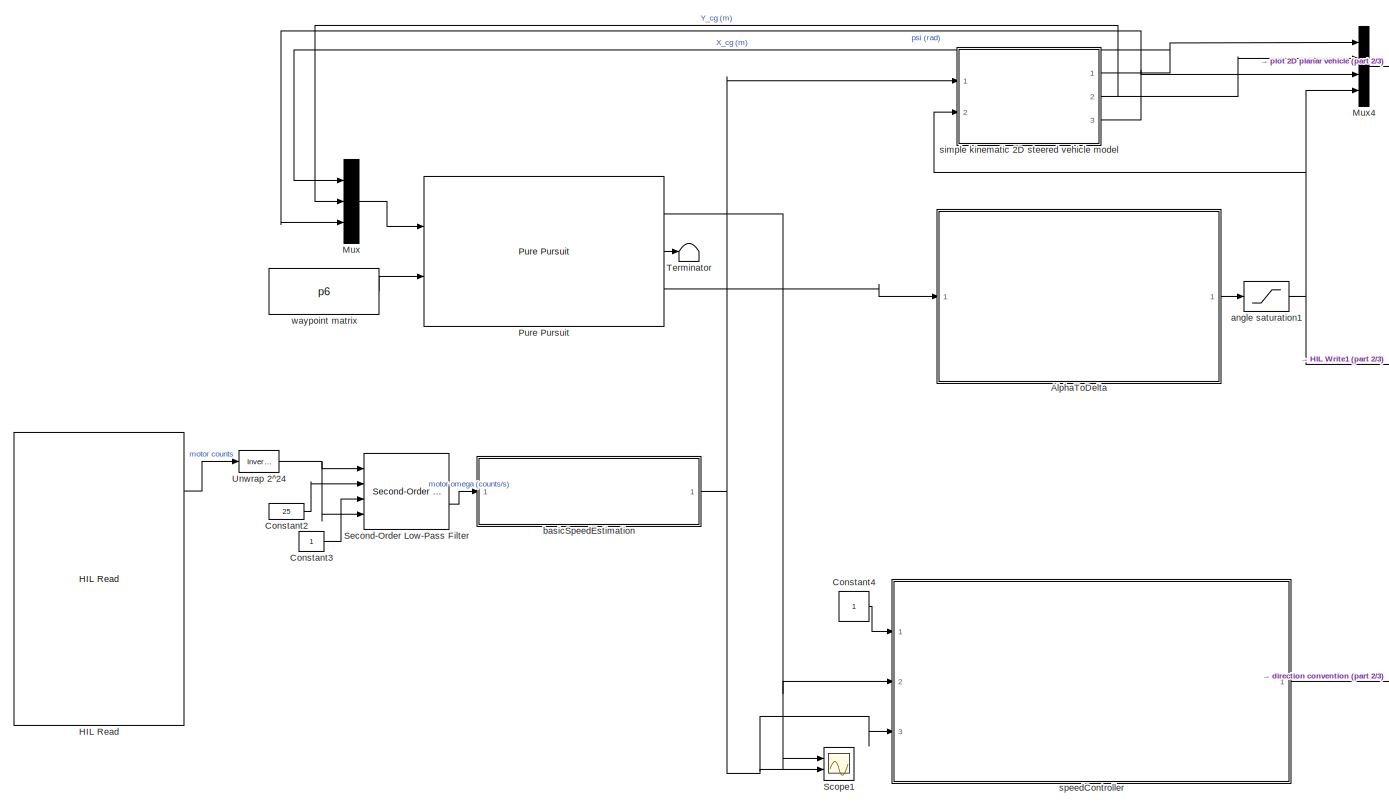
[diagram: root canvas - part 1/3, central region]
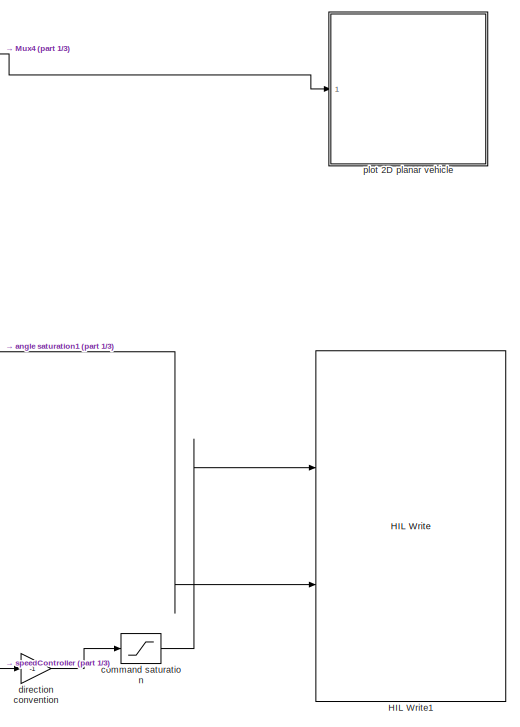
[diagram: root canvas - part 2/3, middle right region]
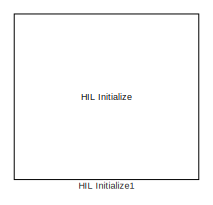
[diagram: root canvas - part 3/3, bottom center region]
MODEL slx_87c99ef4ea6e
KIND model
CONFIG AbsTol = auto
CONFIG EnableMultiTasking = on
CONFIG FixedStep = 1/30
CONFIG MaxStep = auto
CONFIG MinStep = auto
CONFIG RelTol = 1e-3
CONFIG SampleTimeConstraint = Unconstrained
CONFIG SolverName = ode1
CONFIG StartTime = 0.0
CONFIG StopTime = inf
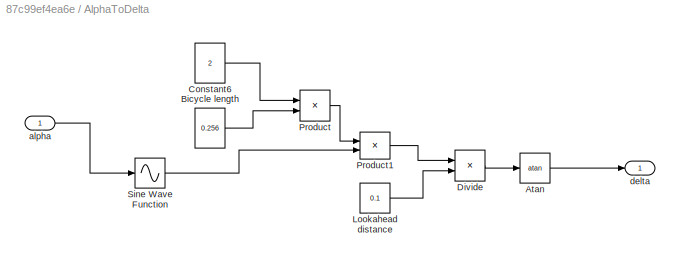
BLOCK [SubSystem] AlphaToDelta
  Ports = [1, 1]
  RequestExecContextInheritance = off
BLOCK [Trigonometry] AlphaToDelta/Atan
  Operator = atan
  Ports = [1, 1]
BLOCK [Constant] AlphaToDelta/Bicycle length
  Value = 0.256
  VectorParams1D = off
BLOCK [Constant] AlphaToDelta/Constant6
  Value = 2
  VectorParams1D = off
BLOCK [Product] AlphaToDelta/Divide
  Inputs = */
  Ports = [2, 1]
BLOCK [Constant] AlphaToDelta/Lookahead distance
  Value = 0.1
  VectorParams1D = off
BLOCK [Product] AlphaToDelta/Product
  Ports = [2, 1]
BLOCK [Product] AlphaToDelta/Product1
  Ports = [2, 1]
BLOCK [Sin] AlphaToDelta/Sine Wave Function
  Ports = [1, 1]
  SampleTime = 0
  TimeSource = Use external signal
BLOCK [Inport] AlphaToDelta/alpha
BLOCK [Outport] AlphaToDelta/delta
BLOCK [Constant] Constant2
  Value = 25
BLOCK [Constant] Constant3
BLOCK [Constant] Constant4
  VectorParams1D = off
BLOCK [Reference] HIL Initialize1  REF=quarc_library/Data Acquisition/Generic/Configuration/HIL Initialize
  AttributesFormatString = %<object_name> (%<board_type>-%<board_number>)
  Ports = []
  SourceBlock = quarc_library/Data Acquisition/Generic/Configuration/HIL Initialize
  SourceProductName = QUARC Targets
  SourceType = HIL Initialize
  UserDataPersistent = on
BLOCK [Reference] HIL Read  REF=quarc_library/Data Acquisition/Generic/Immediate I//O/HIL Read
  AttributesFormatString = (%<object_name>)
  Ports = [0, 4]
  SourceBlock = quarc_library/Data Acquisition/Generic/Immediate I//O/HIL Read
  SourceProductName = QUARC Targets
  SourceType = HIL Read
  UserDataPersistent = on
BLOCK [Reference] HIL Write1  REF=quarc_library/Data Acquisition/Generic/Immediate I//O/HIL Write
  AttributesFormatString = (%<object_name>)
  Ports = [2]
  SourceBlock = quarc_library/Data Acquisition/Generic/Immediate I//O/HIL Write
  SourceProductName = QUARC Targets
  SourceType = HIL Write
  UserDataPersistent = on
BLOCK [Mux] Mux
  DisplayOption = bar
  Inputs = 3
  Ports = [3, 1]
BLOCK [Mux] Mux4
  DisplayOption = bar
  Ports = [4, 1]
BLOCK [Reference] Pure Pursuit  REF=robotalgslib/Pure Pursuit
  Ports = [2, 3]
  SourceBlock = robotalgslib/Pure Pursuit
  SourceProductBaseCode = NV,RO
  SourceType = nav.slalgs.internal.PurePursuit
BLOCK [Scope] Scope1
  Floating = off
  NumInputPorts = 2
  Ports = [2]
  ScopeSpecificationString = Simulink.scopes.TimeScopeBlockCfg('CurrentConfiguration', extmgr.ConfigurationSet(extmgr.Configuration('Core','General UI',true),extmgr.Configuration('Core','Source UI',true),extmgr.Configuration('Sources','WiredSimulink',true,'DataLoggingVariableName','ScopeData1'),extmgr.Configuration('Visuals','Time Domain',true,'SerializedDisplays',{struct('MinYLimReal','0.23968','MaxYLimReal','0.37255','YLabe...<+1411ch>
BLOCK [Reference] Second-Order Low-Pass Filter  REF=quarc_library/Continuous/Second-Order
Low-Pass Filter
  Ports = [4, 2]
  SourceBlock = quarc_library/Continuous/Second-Order\nLow-Pass Filter
  SourceProductName = QUARC Targets
  SourceType = Second-Order Low-Pass Filter
BLOCK [Terminator] Terminator
BLOCK [Reference] Unwrap 2^24  REF=quarc_library/Discontinuities/Inverse
Modulus
  Ports = [1, 1]
  SourceBlock = quarc_library/Discontinuities/Inverse\nModulus
  SourceProductName = QUARC Targets
  SourceType = Inverse Modulus
BLOCK [Saturate] angle saturation1
  NameLocation = top
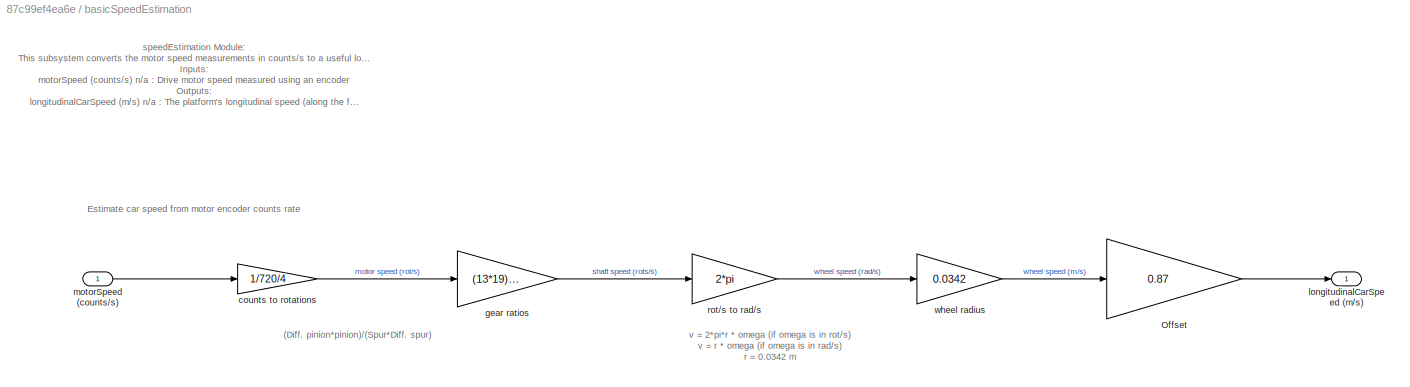
BLOCK [SubSystem] basicSpeedEstimation
  Ports = [1, 1]
  RequestExecContextInheritance = off
BLOCK [Gain] basicSpeedEstimation/Offset
  Gain = 0.87
BLOCK [Gain] basicSpeedEstimation/counts to rotations
  Gain = 1/720/4
BLOCK [Gain] basicSpeedEstimation/gear ratios
  Gain = (13*19)/(70*37)
BLOCK [Outport] basicSpeedEstimation/longitudinalCarSpeed (m//s)
  VectorParamsAs1DForOutWhenUnconnected = off
BLOCK [Inport] basicSpeedEstimation/motorSpeed (counts//s)
BLOCK [Gain] basicSpeedEstimation/rot//s to rad//s
  Gain = 2*pi
BLOCK [Gain] basicSpeedEstimation/wheel radius
  Gain = 0.0342
BLOCK [Saturate] command saturation
  LowerLimit = -0.20
  NameLocation = top
  UpperLimit = 0.20
BLOCK [Gain] direction convention
  Gain = -1
  NameLocation = top
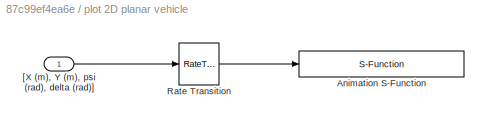
BLOCK [SubSystem] plot 2D planar vehicle
  Ports = [1]
  RequestExecContextInheritance = off
BLOCK [S-Function] plot 2D planar vehicle/Animation S-Function
  EnableBusSupport = off
  FunctionName = sanim_XY_vehicle_viz
  Parameters = Config
  Ports = [1]
  SFcnIsStateOwnerBlock = off
  SFunctionDeploymentMode = off
BLOCK [RateTransition] plot 2D planar vehicle/Rate Transition
  Integrity = off
BLOCK [Inport] plot 2D planar vehicle/[X (m), Y (m), psi (rad), delta (rad)]
BLOCK [SubSystem] simple kinematic 2D steered vehicle model
  Ports = [2, 3]
  RequestExecContextInheritance = off
BLOCK [Gain] simple kinematic 2D steered vehicle model/1//L
  Gain = 1/vehicle_length
BLOCK [Display] simple kinematic 2D steered vehicle model/Display
  Decimation = 1
  NameLocation = top
  Ports = [1]
BLOCK [Gain] simple kinematic 2D steered vehicle model/Gain
  Gain = vehicle_length/2
BLOCK [Ground] simple kinematic 2D steered vehicle model/Ground
BLOCK [Integrator] simple kinematic 2D steered vehicle model/Integrator
  InitialCondition = X_ic
  Ports = [1, 1]
BLOCK [Integrator] simple kinematic 2D steered vehicle model/Integrator1
  InitialCondition = Y_ic
  Ports = [1, 1]
BLOCK [Integrator] simple kinematic 2D steered vehicle model/Integrator2
  InitialCondition = yaw_ic
  Ports = [1, 1]
BLOCK [Product] simple kinematic 2D steered vehicle model/Product
  Ports = [2, 1]
  RndMeth = Zero
BLOCK [Product] simple kinematic 2D steered vehicle model/Product1
  Ports = [2, 1]
  RndMeth = Zero
BLOCK [Product] simple kinematic 2D steered vehicle model/Product2
  Ports = [2, 1]
  RndMeth = Zero
BLOCK [Product] simple kinematic 2D steered vehicle model/Product3
  Ports = [2, 1]
  RndMeth = Zero
BLOCK [Product] simple kinematic 2D steered vehicle model/Product4
  Ports = [2, 1]
  RndMeth = Zero
BLOCK [Sum] simple kinematic 2D steered vehicle model/Sum
  Inputs = |+-
  Ports = [2, 1]
BLOCK [Sum] simple kinematic 2D steered vehicle model/Sum1
  Inputs = |++
  Ports = [2, 1]
BLOCK [Terminator] simple kinematic 2D steered vehicle model/Terminator
BLOCK [Trigonometry] simple kinematic 2D steered vehicle model/Trigonometric Function
  Operator = cos
  Ports = [1, 1]
BLOCK [Trigonometry] simple kinematic 2D steered vehicle model/Trigonometric Function1
  Ports = [1, 1]
BLOCK [Trigonometry] simple kinematic 2D steered vehicle model/Trigonometric Function3
  Operator = tan
  Ports = [1, 1]
BLOCK [Outport] simple kinematic 2D steered vehicle model/X_cg (m)
  VectorParamsAs1DForOutWhenUnconnected = off
BLOCK [Outport] simple kinematic 2D steered vehicle model/Y_cg (m)
  Port = 2
  VectorParamsAs1DForOutWhenUnconnected = off
BLOCK [Inport] simple kinematic 2D steered vehicle model/delta_steer (rad)
  Port = 2
BLOCK [Outport] simple kinematic 2D steered vehicle model/psi (rad)
  Port = 3
  VectorParamsAs1DForOutWhenUnconnected = off
BLOCK [Inport] simple kinematic 2D steered vehicle model/v_x (m//s)
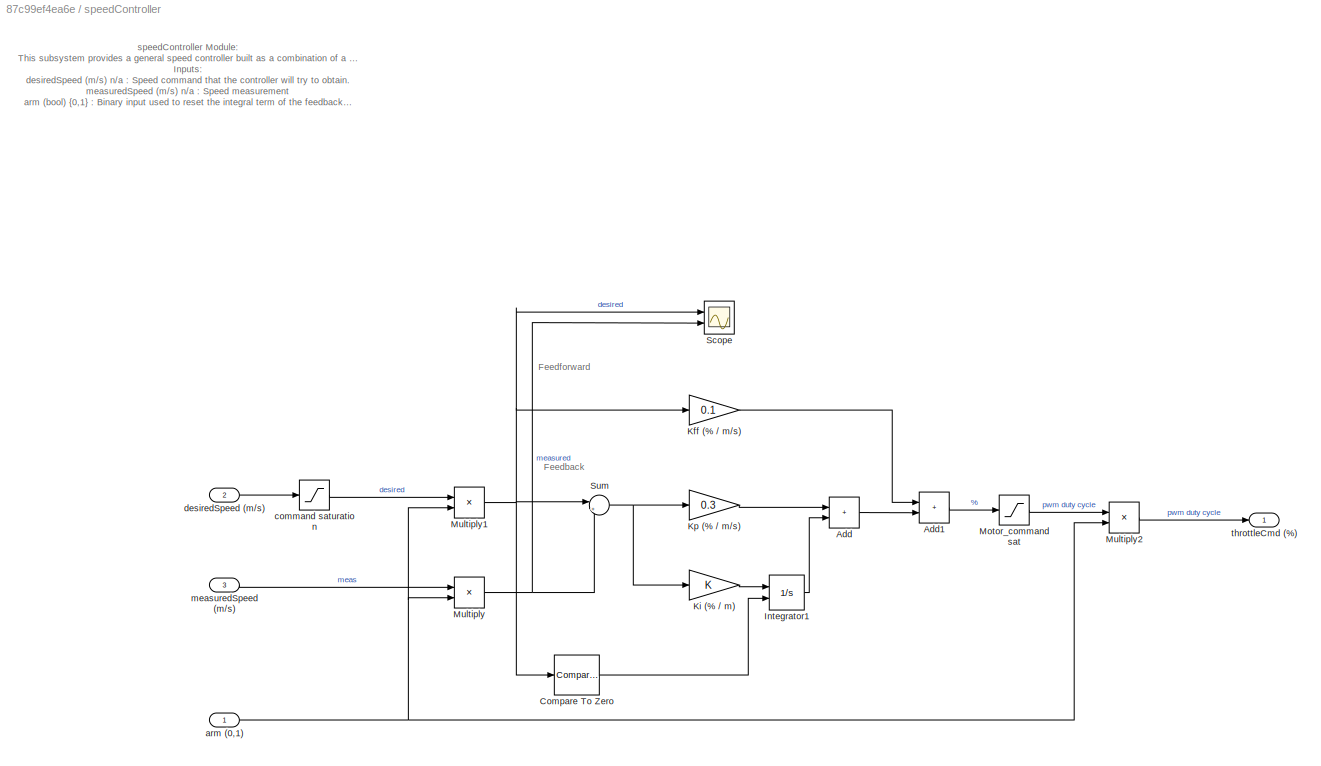
BLOCK [SubSystem] speedController
  Ports = [3, 1]
  RequestExecContextInheritance = off
BLOCK [Sum] speedController/Add
  IconShape = rectangular
  Ports = [2, 1]
BLOCK [Sum] speedController/Add1
  IconShape = rectangular
  Ports = [2, 1]
BLOCK [Reference] speedController/Compare To Zero  REF=simulink/Logic and Bit
Operations/Compare
To Zero
  Ports = [1, 1]
  SourceBlock = simulink/Logic and Bit\nOperations/Compare\nTo Zero
  SourceProductBaseCode = SL
  SourceType = Compare To Zero
BLOCK [Integrator] speedController/Integrator1
  ExternalReset = either
  LimitOutput = on
  LowerSaturationLimit = -0.1
  Ports = [2, 1]
  UpperSaturationLimit = 0.1
BLOCK [Gain] speedController/Kff (% // m//s)
  Gain = 0.1
BLOCK [Gain] speedController/Ki (% // m) 
BLOCK [Gain] speedController/Kp (% // m//s)
  Gain = 0.3
BLOCK [Saturate] speedController/Motor_command sat
  LinearizeAsGain = off
BLOCK [Product] speedController/Multiply
  Ports = [2, 1]
BLOCK [Product] speedController/Multiply1
  Ports = [2, 1]
BLOCK [Product] speedController/Multiply2
  Ports = [2, 1]
BLOCK [Scope] speedController/Scope
  Floating = off
  NumInputPorts = 2
  Ports = [2]
  ScopeSpecificationString = Simulink.scopes.TimeScopeBlockCfg('CurrentConfiguration', extmgr.ConfigurationSet(extmgr.Configuration('Core','General UI',true),extmgr.Configuration('Core','Source UI',true),extmgr.Configuration('Sources','WiredSimulink',true,'DataLoggingVariableName','ScopeData1'),extmgr.Configuration('Visuals','Time Domain',true,'SerializedDisplays',{struct('MinYLimReal','-2','MaxYLimReal','2','YLabelReal','m/s...<+1402ch>
BLOCK [Sum] speedController/Sum
  Inputs = |+-
  Ports = [2, 1]
BLOCK [Inport] speedController/arm (0,1)
BLOCK [Saturate] speedController/command saturation
  LowerLimit = -0.8
  UpperLimit = 0.8
BLOCK [Inport] speedController/desiredSpeed (m//s)
  Port = 2
BLOCK [Inport] speedController/measuredSpeed (m//s)
  Port = 3
BLOCK [Outport] speedController/throttleCmd (%)
  VectorParamsAs1DForOutWhenUnconnected = off
BLOCK [Constant] waypoint matrix
  Value = p6
  VectorParams1D = off
ANNOTATION basicSpeedEstimation: (Diff. pinion*pinion)/(Spur*Diff. spur)
ANNOTATION basicSpeedEstimation: speedEstimation Module: This subsystem converts the motor speed measurements in counts/s to a useful longitudinal car speed in m/s. Inputs: motorSpeed (counts/s) n/a : Drive motor speed measured using an encoder Outputs: longitudinalCarSpeed (m/s) n/a : The platform's longitudinal speed (along the front-rear axis direction)
ANNOTATION basicSpeedEstimation: Estimate car speed from motor encoder counts rate
ANNOTATION basicSpeedEstimation: v = 2*pi*r * omega (if omega is in rot/s) v = r * omega (if omega is in rad/s) r = 0.0342 m
ANNOTATION simple kinematic 2D steered vehicle model: Marc Compere <email> created : 30 July 2011 modified: 11 Jan 2016
ANNOTATION simple kinematic 2D steered vehicle model: Simple kinematic vehicle model of wheelbase length L and width W. Non-holonomic constraints on front and rear wheels allow rolling at low speed with no slipping: v_X = [ v_x \cdot cos(\psi_{heading}) -(L/2)\cdot\omega_z\cdotsin(\psi_{heading}) ] v_Y = [ v_x \cdot sin(\psi_{heading}) +(L/2)\cdot\omega_z\cdotcos(\psi_{heading}) ]
ANNOTATION simple kinematic 2D steered vehicle model: X-position in terrain frame
ANNOTATION simple kinematic 2D steered vehicle model: Y-position in terrain frame
ANNOTATION simple kinematic 2D steered vehicle model: vehicle heading
ANNOTATION simple kinematic 2D steered vehicle model: where: v_x - body-fixed vehicle velocity v_X - terrain frame X velocity v_Y - terrain frame Y velocity \psi-dot - same as \omega_z \psi-dot - (v_x/L) \cdot \delta_{steer}
ANNOTATION speedController: speedController Module: This subsystem provides a general speed controller built as a combination of a feedforward and feedback controllers. Inputs: desiredSpeed (m/s) n/a : Speed command that the controller will try to obtain. measuredSpeed (m/s) n/a : Speed measurement arm (bool) {0,1} : Binary input used to reset the integral term of the feedback controller Outputs: throttleCmd (%) n/a : Percen...<+289ch>
ANNOTATION speedController: Feedback
ANNOTATION speedController: Feedforward
LINE AlphaToDelta/Atan:1 -> AlphaToDelta/delta:1
LINE AlphaToDelta/Bicycle length:1 -> AlphaToDelta/Product:2
LINE AlphaToDelta/Constant6:1 -> AlphaToDelta/Product:1
LINE AlphaToDelta/Divide:1 -> AlphaToDelta/Atan:1
LINE AlphaToDelta/Lookahead distance:1 -> AlphaToDelta/Divide:2
LINE AlphaToDelta/Product1:1 -> AlphaToDelta/Divide:1
LINE AlphaToDelta/Product:1 -> AlphaToDelta/Product1:1
LINE AlphaToDelta/Sine Wave Function:1 -> AlphaToDelta/Product1:2
LINE AlphaToDelta/alpha:1 -> AlphaToDelta/Sine Wave Function:1
LINE AlphaToDelta:1 -> angle saturation1:1
LINE Constant2:1 -> Second-Order Low-Pass Filter:2
LINE Constant3:1 -> Second-Order Low-Pass Filter:3
LINE Constant4:1 -> speedController:1
LINE HIL Read:1 -> Unwrap 2^24:1
LINE Mux4:1 -> plot 2D planar vehicle:1
LINE Mux:1 -> Pure Pursuit:1
NET Pure Pursuit:1 -> Scope1:1, speedController:2
LINE Pure Pursuit:2 -> Terminator:1
LINE Pure Pursuit:3 -> AlphaToDelta:1
LINE Second-Order Low-Pass Filter:2 -> basicSpeedEstimation:1
NET Unwrap 2^24:1 -> Second-Order Low-Pass Filter:1, Second-Order Low-Pass Filter:4
NET angle saturation1:1 -> HIL Write1:2, Mux4:4, simple kinematic 2D steered vehicle model:2
LINE basicSpeedEstimation/Offset:1 -> basicSpeedEstimation/longitudinalCarSpeed (m//s):1
LINE basicSpeedEstimation/counts to rotations:1 -> basicSpeedEstimation/gear ratios:1
LINE basicSpeedEstimation/gear ratios:1 -> basicSpeedEstimation/rot//s to rad//s:1
LINE basicSpeedEstimation/motorSpeed (counts//s):1 -> basicSpeedEstimation/counts to rotations:1
LINE basicSpeedEstimation/rot//s to rad//s:1 -> basicSpeedEstimation/wheel radius:1
LINE basicSpeedEstimation/wheel radius:1 -> basicSpeedEstimation/Offset:1
NET basicSpeedEstimation:1 -> Scope1:2, simple kinematic 2D steered vehicle model:1, speedController:3
LINE command saturation:1 -> HIL Write1:1
LINE direction convention:1 -> command saturation:1
LINE plot 2D planar vehicle/Rate Transition:1 -> plot 2D planar vehicle/Animation S-Function:1
LINE plot 2D planar vehicle/[X (m), Y (m), psi (rad), delta (rad)]:1 -> plot 2D planar vehicle/Rate Transition:1
LINE simple kinematic 2D steered vehicle model/1//L:1 -> simple kinematic 2D steered vehicle model/Product2:1
NET simple kinematic 2D steered vehicle model/Gain:1 -> simple kinematic 2D steered vehicle model/Product3:1, simple kinematic 2D steered vehicle model/Product4:1
LINE simple kinematic 2D steered vehicle model/Ground:1 -> simple kinematic 2D steered vehicle model/Trigonometric Function3:1
LINE simple kinematic 2D steered vehicle model/Integrator1:1 -> simple kinematic 2D steered vehicle model/Y_cg (m):1
NET simple kinematic 2D steered vehicle model/Integrator2:1 -> simple kinematic 2D steered vehicle model/Trigonometric Function1:1, simple kinematic 2D steered vehicle model/Trigonometric Function:1, simple kinematic 2D steered vehicle model/psi (rad):1
LINE simple kinematic 2D steered vehicle model/Integrator:1 -> simple kinematic 2D steered vehicle model/X_cg (m):1
LINE simple kinematic 2D steered vehicle model/Product1:1 -> simple kinematic 2D steered vehicle model/Sum:1
NET simple kinematic 2D steered vehicle model/Product2:1 -> simple kinematic 2D steered vehicle model/Display:1, simple kinematic 2D steered vehicle model/Gain:1, simple kinematic 2D steered vehicle model/Integrator2:1
LINE simple kinematic 2D steered vehicle model/Product3:1 -> simple kinematic 2D steered vehicle model/Sum:2
LINE simple kinematic 2D steered vehicle model/Product4:1 -> simple kinematic 2D steered vehicle model/Sum1:2
LINE simple kinematic 2D steered vehicle model/Product:1 -> simple kinematic 2D steered vehicle model/Sum1:1
LINE simple kinematic 2D steered vehicle model/Sum1:1 -> simple kinematic 2D steered vehicle model/Integrator1:1
LINE simple kinematic 2D steered vehicle model/Sum:1 -> simple kinematic 2D steered vehicle model/Integrator:1
NET simple kinematic 2D steered vehicle model/Trigonometric Function1:1 -> simple kinematic 2D steered vehicle model/Product3:2, simple kinematic 2D steered vehicle model/Product:2
LINE simple kinematic 2D steered vehicle model/Trigonometric Function3:1 -> simple kinematic 2D steered vehicle model/Terminator:1
NET simple kinematic 2D steered vehicle model/Trigonometric Function:1 -> simple kinematic 2D steered vehicle model/Product1:2, simple kinematic 2D steered vehicle model/Product4:2
LINE simple kinematic 2D steered vehicle model/delta_steer (rad):1 -> simple kinematic 2D steered vehicle model/Product2:2
NET simple kinematic 2D steered vehicle model/v_x (m//s):1 -> simple kinematic 2D steered vehicle model/1//L:1, simple kinematic 2D steered vehicle model/Product1:1, simple kinematic 2D steered vehicle model/Product:1
NET simple kinematic 2D steered vehicle model:1 -> Mux4:1, Mux:1
NET simple kinematic 2D steered vehicle model:2 -> Mux4:2, Mux:2
NET simple kinematic 2D steered vehicle model:3 -> Mux4:3, Mux:3
LINE speedController/Add1:1 -> speedController/Motor_command sat:1
LINE speedController/Add:1 -> speedController/Add1:2
LINE speedController/Compare To Zero:1 -> speedController/Integrator1:2
LINE speedController/Integrator1:1 -> speedController/Add:2
LINE speedController/Kff (% // m//s):1 -> speedController/Add1:1
LINE speedController/Ki (% // m) :1 -> speedController/Integrator1:1
LINE speedController/Kp (% // m//s):1 -> speedController/Add:1
LINE speedController/Motor_command sat:1 -> speedController/Multiply2:1
NET speedController/Multiply1:1 -> speedController/Compare To Zero:1, speedController/Kff (% // m//s):1, speedController/Scope:1, speedController/Sum:1
LINE speedController/Multiply2:1 -> speedController/throttleCmd (%):1
NET speedController/Multiply:1 -> speedController/Scope:2, speedController/Sum:2
NET speedController/Sum:1 -> speedController/Ki (% // m) :1, speedController/Kp (% // m//s):1
NET speedController/arm (0,1):1 -> speedController/Multiply1:2, speedController/Multiply2:2, speedController/Multiply:2
LINE speedController/command saturation:1 -> speedController/Multiply1:1
LINE speedController/desiredSpeed (m//s):1 -> speedController/command saturation:1
LINE speedController/measuredSpeed (m//s):1 -> speedController/Multiply:1
LINE speedController:1 -> direction convention:1
LINE waypoint matrix:1 -> Pure Pursuit:2
note: NET lines group one-source signal fan-out (src -> all destinations, sorted); 1:1 wires keep LINE
